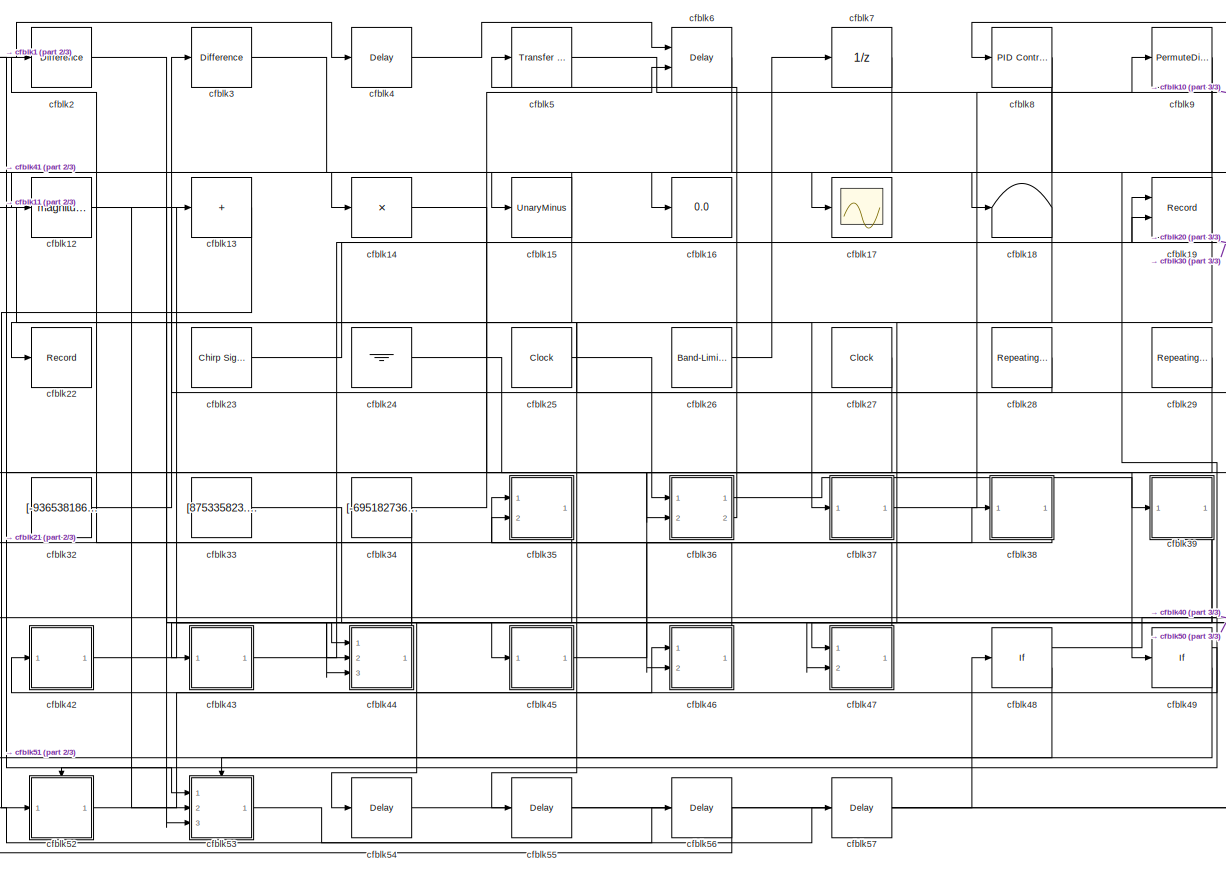
[diagram: root canvas - part 1/3, most of the canvas]
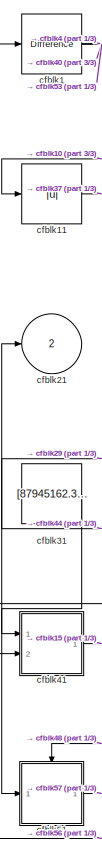
[diagram: root canvas - part 2/3, left side, full height]
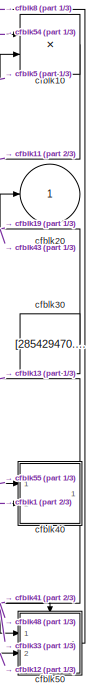
[diagram: root canvas - part 3/3, right side, full height]
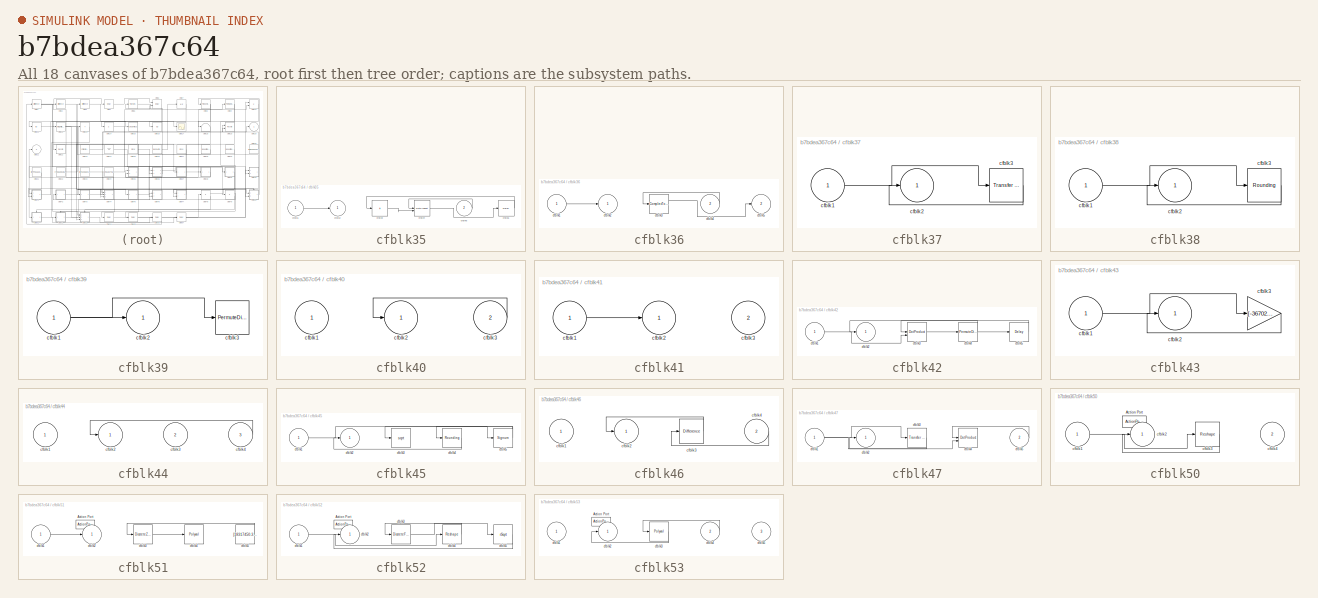
[diagram: thumbnail index - all 18 canvases of the model, root first then tree order]
MODEL slx_b7bdea367c64
KIND model
CONFIG AbsTol = auto
CONFIG EnableMultiTasking = off
CONFIG FixedStep = auto
CONFIG MaxStep = auto
CONFIG MinStep = auto
CONFIG RelTol = 1e-3
CONFIG SampleTimeConstraint = Unconstrained
CONFIG SolverName = VariableStepAuto
CONFIG StartTime = 0.0
CONFIG StopTime = 10.0
BLOCK [Reference] cfblk1  REF=simulink/Discrete/Difference
  Ports = [1, 1]
  SourceBlock = simulink/Discrete/Difference
  SourceProductBaseCode = SL
  SourceType = Difference
BLOCK [Product] cfblk10
  Ports = [2, 1]
BLOCK [Abs] cfblk11
  SaturateOnIntegerOverflow = off
BLOCK [Math] cfblk12
  Operator = magnitude^2
  Ports = [1, 1]
BLOCK [Sum] cfblk13
  IconShape = rectangular
  Inputs = +
  Ports = [1, 1]
BLOCK [Product] cfblk14
  Inputs = *
  Ports = [1, 1]
BLOCK [UnaryMinus] cfblk15
BLOCK [Display] cfblk16
  Decimation = 1
  Ports = [1]
BLOCK [Scope] cfblk17
  Floating = off
  NumInputPorts = 1
  Ports = [1]
BLOCK [Terminator] cfblk18
BLOCK [Record] cfblk19
  CompatibilityTag = XY
  FileSettingsInternal = {"entries":[{"content":{"excelSettings":{"content":{},"type":"Streamout.ExcelSettings"}},"type":"Streamout.FileSettingStorage","uuid":"751e4d99-45f8-40d9-b9e3-6c58bf4239d2"}],"packageUris":["http://schema.mathworks.com/mf0/streamout_blocks/R2020a"],"version":"1.0"}
  Layout = [1 1]
  Ports = [2]
  SignalsInternal = {"entries":[{"content":{"signals":[{"content":{"blockPath":["sampleModel189/cfblk19"],"channel":[],"dimensions":[1],"domain":"sampleModel189/cfblk19","lineColor":"#a2142f","plots":[1],"port":1,"sid":[""],"signalID":7095,"signalName":"cfblk30"},"type":"RecordBlkView.Signal","uuid":"2f15c82b-8551-407f-94ab-65c4b1ae4010"},{"content":{"blockPath":["sampleModel189/cfblk19"],"channel":[],"dimensions":[1...<+383ch>
  VisualizationBindings = {"xyplotplugin":{"info":[{"series":[{"bindingParametersList":[{"parameter":"X-Axis","signalID":7095,"signalName":"cfblk30"},{"parameter":"Y-Axis","signalID":7099,"signalName":"cfblk23"}],"seriesID":10630}],"subplotID":1}]}}
BLOCK [Reference] cfblk2  REF=simulink/Discrete/Difference
  Ports = [1, 1]
  SourceBlock = simulink/Discrete/Difference
  SourceProductBaseCode = SL
  SourceType = Difference
BLOCK [Outport] cfblk20
BLOCK [Outport] cfblk21
  Port = 2
BLOCK [Record] cfblk22
  FileSettingsInternal = {"entries":[{"content":{"excelSettings":{"content":{},"type":"Streamout.ExcelSettings"}},"type":"Streamout.FileSettingStorage","uuid":"a7b27562-a01f-4c86-8193-aa076a536ee6"}],"packageUris":["http://schema.mathworks.com/mf0/streamout_blocks/R2020a"],"version":"1.0"}
  Ports = [1]
  SignalsInternal = {"entries":[{"content":{"signals":[{"content":{"blockPath":["sampleModel189/cfblk22"],"channel":[],"dimensions":[1],"domain":"sampleModel189/cfblk22","lineColor":"#0072bd","plots":[1],"port":1,"sid":[""],"signalID":7103,"signalName":"cfblk28"},"type":"RecordBlkView.Signal","uuid":"4461f903-eca4-4961-b801-cb7c5602d0fa"}]},"type":"RecordBlkView.InputSignals","uuid":"5c4d19d6-a334-4d05-b301-3a9efca48...<+97ch>
  VisualizationBindings = {"sparklinesplugin":{"info":[{"bindingParametersList":[],"subplotID":1}]}}
BLOCK [Reference] cfblk23  REF=simulink/Sources/Chirp Signal
  Ports = [0, 1]
  SourceBlock = simulink/Sources/Chirp Signal
  SourceProductBaseCode = SL
  SourceType = chirp
BLOCK [Ground] cfblk24
BLOCK [Clock] cfblk25
BLOCK [Reference] cfblk26  REF=simulink/Sources/Band-Limited
White Noise
  Ports = [0, 1]
  SourceBlock = simulink/Sources/Band-Limited\nWhite Noise
  SourceProductBaseCode = SL
  SourceType = Band-Limited White Noise.
BLOCK [Clock] cfblk27
BLOCK [Reference] cfblk28  REF=simulink/Sources/Repeating
Sequence
Interpolated
  Ports = [0, 1]
  SourceBlock = simulink/Sources/Repeating\nSequence\nInterpolated
  SourceProductBaseCode = SL
  SourceType = Repeating Sequence Interpolated
BLOCK [Reference] cfblk29  REF=simulink/Sources/Repeating
Sequence
Stair
  Ports = [0, 1]
  SourceBlock = simulink/Sources/Repeating\nSequence\nStair
  SourceProductBaseCode = SL
  SourceType = Repeating Sequence Stair
BLOCK [Reference] cfblk3  REF=simulink/Discrete/Difference
  Ports = [1, 1]
  SourceBlock = simulink/Discrete/Difference
  SourceProductBaseCode = SL
  SourceType = Difference
BLOCK [Constant] cfblk30
  SampleTime = 1
  Value = [285429470.929445]
BLOCK [Constant] cfblk31
  SampleTime = 1
  Value = [87945162.384821]
BLOCK [Constant] cfblk32
  SampleTime = 1
  Value = [-936538186.247113]
BLOCK [Constant] cfblk33
  SampleTime = 1
  Value = [875335823.969465]
BLOCK [Constant] cfblk34
  SampleTime = 1
  Value = [-695182736.408448]
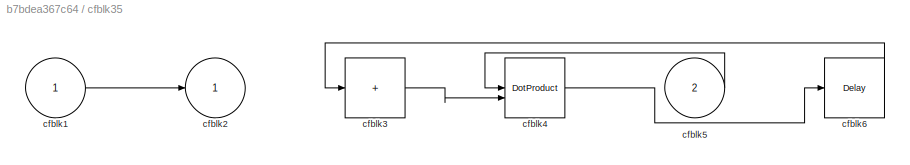
BLOCK [SubSystem] cfblk35
  Ports = [2, 1]
  RequestExecContextInheritance = off
BLOCK [Inport] cfblk35/cfblk1
BLOCK [Outport] cfblk35/cfblk2
BLOCK [Sum] cfblk35/cfblk3
  IconShape = rectangular
  Inputs = +
  Ports = [1, 1]
BLOCK [DotProduct] cfblk35/cfblk4
  OutDataTypeStr = Inherit: Inherit via internal rule
BLOCK [Inport] cfblk35/cfblk5
  Port = 2
BLOCK [Delay] cfblk35/cfblk6
  InputPortMap = u0
  Ports = [1, 1]
  SampleTime = 1
BLOCK [SubSystem] cfblk36
  Ports = [2, 2]
  RequestExecContextInheritance = off
BLOCK [Inport] cfblk36/cfblk1
BLOCK [Outport] cfblk36/cfblk2
BLOCK [ComplexToRealImag] cfblk36/cfblk3
  Ports = [1, 2]
BLOCK [Inport] cfblk36/cfblk4
  Port = 2
BLOCK [Outport] cfblk36/cfblk5
  Port = 2
BLOCK [SubSystem] cfblk37
  Ports = [1, 1]
  RequestExecContextInheritance = off
BLOCK [Inport] cfblk37/cfblk1
BLOCK [Outport] cfblk37/cfblk2
BLOCK [Reference] cfblk37/cfblk3  REF=simulink/Discrete/Transfer Fcn
Real Zero
  Ports = [1, 1]
  SourceBlock = simulink/Discrete/Transfer Fcn\nReal Zero
  SourceProductBaseCode = SL
  SourceType = Transfer Fcn Real Zero
BLOCK [SubSystem] cfblk38
  Ports = [1, 1]
  RequestExecContextInheritance = off
BLOCK [Inport] cfblk38/cfblk1
BLOCK [Outport] cfblk38/cfblk2
BLOCK [Rounding] cfblk38/cfblk3
BLOCK [SubSystem] cfblk39
  Ports = [1, 1]
  RequestExecContextInheritance = off
BLOCK [Inport] cfblk39/cfblk1
BLOCK [Outport] cfblk39/cfblk2
BLOCK [PermuteDimensions] cfblk39/cfblk3
BLOCK [Delay] cfblk4
  InputPortMap = u0
  Ports = [1, 1]
  SampleTime = 1
BLOCK [SubSystem] cfblk40
  Ports = [2, 1]
  RequestExecContextInheritance = off
BLOCK [Inport] cfblk40/cfblk1
BLOCK [Outport] cfblk40/cfblk2
BLOCK [Inport] cfblk40/cfblk3
  Port = 2
BLOCK [SubSystem] cfblk41
  Ports = [2, 1]
  RequestExecContextInheritance = off
BLOCK [Inport] cfblk41/cfblk1
BLOCK [Outport] cfblk41/cfblk2
BLOCK [Inport] cfblk41/cfblk3
  Port = 2
BLOCK [SubSystem] cfblk42
  Ports = [1, 1]
  RequestExecContextInheritance = off
BLOCK [Inport] cfblk42/cfblk1
BLOCK [Outport] cfblk42/cfblk2
BLOCK [DotProduct] cfblk42/cfblk3
  OutDataTypeStr = Inherit: Inherit via internal rule
BLOCK [PermuteDimensions] cfblk42/cfblk4
BLOCK [Delay] cfblk42/cfblk5
  InputPortMap = u0
  Ports = [1, 1]
  SampleTime = 1
BLOCK [SubSystem] cfblk43
  Ports = [1, 1]
  RequestExecContextInheritance = off
BLOCK [Inport] cfblk43/cfblk1
BLOCK [Outport] cfblk43/cfblk2
BLOCK [Gain] cfblk43/cfblk3
  Gain = [-367020434.376307]
BLOCK [SubSystem] cfblk44
  Ports = [3, 1]
  RequestExecContextInheritance = off
BLOCK [Inport] cfblk44/cfblk1
BLOCK [Outport] cfblk44/cfblk2
BLOCK [Inport] cfblk44/cfblk3
  Port = 2
BLOCK [Inport] cfblk44/cfblk4
  Port = 3
BLOCK [SubSystem] cfblk45
  Ports = [1, 1]
  RequestExecContextInheritance = off
BLOCK [Inport] cfblk45/cfblk1
BLOCK [Outport] cfblk45/cfblk2
BLOCK [Sqrt] cfblk45/cfblk3
BLOCK [Rounding] cfblk45/cfblk4
BLOCK [Signum] cfblk45/cfblk5
BLOCK [SubSystem] cfblk46
  Ports = [2, 1]
  RequestExecContextInheritance = off
BLOCK [Inport] cfblk46/cfblk1
BLOCK [Outport] cfblk46/cfblk2
BLOCK [Reference] cfblk46/cfblk3  REF=simulink/Discrete/Difference
  Ports = [1, 1]
  SourceBlock = simulink/Discrete/Difference
  SourceProductBaseCode = SL
  SourceType = Difference
BLOCK [Inport] cfblk46/cfblk4
  Port = 2
BLOCK [SubSystem] cfblk47
  Ports = [2, 1]
  RequestExecContextInheritance = off
BLOCK [Inport] cfblk47/cfblk1
BLOCK [Outport] cfblk47/cfblk2
BLOCK [Reference] cfblk47/cfblk3  REF=simulink/Discrete/Transfer Fcn
First Order
  Ports = [1, 1]
  SourceBlock = simulink/Discrete/Transfer Fcn\nFirst Order
  SourceProductBaseCode = SL
  SourceType = First Order Transfer Fcn
BLOCK [DotProduct] cfblk47/cfblk4
  OutDataTypeStr = Inherit: Inherit via internal rule
BLOCK [Inport] cfblk47/cfblk5
  Port = 2
BLOCK [If] cfblk48
  IfExpression = u1 >= 0
  Ports = [1, 2]
  SampleTime = 1
BLOCK [If] cfblk49
  IfExpression = u1 >= 0
  Ports = [1, 2]
  SampleTime = 1
BLOCK [Reference] cfblk5  REF=simulink/Discrete/Transfer Fcn
Lead or Lag
  Ports = [1, 1]
  SourceBlock = simulink/Discrete/Transfer Fcn\nLead or Lag
  SourceProductBaseCode = SL
  SourceType = Lead or Lag Compensator
BLOCK [SubSystem] cfblk50
  Ports = [2, 1, 0, 0, 0, 0, 0, 1]
  RequestExecContextInheritance = off
  TreatAsAtomicUnit = on
BLOCK [ActionPort] cfblk50/Action Port
  ActionPortLabel = if(u1 >= 0)
BLOCK [Inport] cfblk50/cfblk1
BLOCK [Outport] cfblk50/cfblk2
BLOCK [Reshape] cfblk50/cfblk3
  Ports = [1, 1]
BLOCK [Inport] cfblk50/cfblk4
  Port = 2
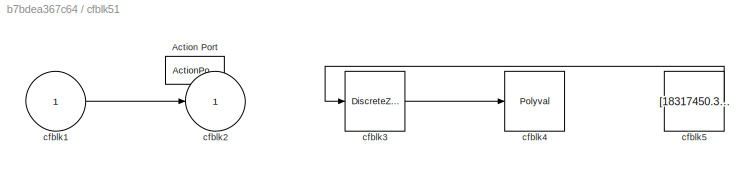
BLOCK [SubSystem] cfblk51
  Ports = [1, 1, 0, 0, 0, 0, 0, 1]
  RequestExecContextInheritance = off
  TreatAsAtomicUnit = on
BLOCK [ActionPort] cfblk51/Action Port
  ActionPortLabel = else
BLOCK [Inport] cfblk51/cfblk1
BLOCK [Outport] cfblk51/cfblk2
BLOCK [DiscreteZeroPole] cfblk51/cfblk3
  Gain = 1
  Poles = [0 0.5]
  SampleTime = -1
BLOCK [Polyval] cfblk51/cfblk4
  Coefs = [ +2.081618890e-019, -1.441693666e-014, +4.719686976e-010, -8.536869453e-006, +1.621573104e-001, -8.087801117e+001 ]
BLOCK [Constant] cfblk51/cfblk5
  SampleTime = 1
  Value = [18317450.341616]
BLOCK [SubSystem] cfblk52
  Ports = [1, 1, 0, 0, 0, 0, 0, 1]
  RequestExecContextInheritance = off
  TreatAsAtomicUnit = on
BLOCK [ActionPort] cfblk52/Action Port
  ActionPortLabel = if(u1 >= 0)
BLOCK [Inport] cfblk52/cfblk1
BLOCK [Outport] cfblk52/cfblk2
BLOCK [DiscreteFilter] cfblk52/cfblk3
  InputPortMap = u0
  Ports = [1, 1]
BLOCK [Reshape] cfblk52/cfblk4
  Ports = [1, 1]
BLOCK [Sqrt] cfblk52/cfblk5
  AlgorithmType = Newton-Raphson
  Operator = rSqrt
BLOCK [SubSystem] cfblk53
  Ports = [3, 1, 0, 0, 0, 0, 0, 1]
  RequestExecContextInheritance = off
  TreatAsAtomicUnit = on
BLOCK [ActionPort] cfblk53/Action Port
  ActionPortLabel = else
BLOCK [Inport] cfblk53/cfblk1
BLOCK [Outport] cfblk53/cfblk2
BLOCK [Polyval] cfblk53/cfblk3
  Coefs = [ +2.081618890e-019, -1.441693666e-014, +4.719686976e-010, -8.536869453e-006, +1.621573104e-001, -8.087801117e+001 ]
BLOCK [Inport] cfblk53/cfblk4
  Port = 2
BLOCK [Inport] cfblk53/cfblk5
  Port = 3
BLOCK [Delay] cfblk54
  InputPortMap = u0
  Ports = [1, 1]
  SampleTime = 1
BLOCK [Delay] cfblk55
  InputPortMap = u0
  Ports = [1, 1]
  SampleTime = 1
BLOCK [Delay] cfblk56
  InputPortMap = u0
  Ports = [1, 1]
  SampleTime = 1
BLOCK [Delay] cfblk57
  InputPortMap = u0
  Ports = [1, 1]
  SampleTime = 1
BLOCK [Delay] cfblk6
  InputPortMap = u0,e6
  Ports = [2, 1]
  SampleTime = 1
  ShowEnablePort = on
BLOCK [UnitDelay] cfblk7
  HasFrameUpgradeWarning = on
BLOCK [Reference] cfblk8  REF=slpidlib/PID Controller
  Ports = [1, 1]
  SourceBlock = slpidlib/PID Controller
  SourceProductBaseCode = SL
  SourceType = PID 1dof
BLOCK [PermuteDimensions] cfblk9
LINE cfblk10:1 -> cfblk11:1
LINE cfblk11:1 -> cfblk37:1
NET cfblk12:1 -> cfblk44:1, cfblk50:2, cfblk53:2
LINE cfblk13:1 -> cfblk52:1
LINE cfblk14:1 -> cfblk36:2
NET cfblk15:1 -> cfblk12:1, cfblk53:3
NET cfblk1:1 -> cfblk40:2, cfblk4:1, cfblk53:1
LINE cfblk23:1 -> cfblk19:2
LINE cfblk24:1 -> cfblk49:1
LINE cfblk25:1 -> cfblk36:1
LINE cfblk26:1 -> cfblk7:1
LINE cfblk27:1 -> cfblk46:2
LINE cfblk28:1 -> cfblk22:1
LINE cfblk29:1 -> cfblk41:1
LINE cfblk2:1 -> cfblk44:2
LINE cfblk30:1 -> cfblk19:1
LINE cfblk31:1 -> cfblk51:1
LINE cfblk32:1 -> cfblk3:1
LINE cfblk33:1 -> cfblk50:1
NET cfblk34:1 -> cfblk43:1, cfblk6:2
LINE cfblk35/cfblk1:1 -> cfblk35/cfblk2:1
LINE cfblk35/cfblk3:1 -> cfblk35/cfblk4:2
LINE cfblk35/cfblk4:1 -> cfblk35/cfblk6:1
LINE cfblk35/cfblk5:1 -> cfblk35/cfblk4:1
LINE cfblk35/cfblk6:1 -> cfblk35/cfblk3:1
LINE cfblk35:1 -> cfblk54:1
LINE cfblk36/cfblk1:1 -> cfblk36/cfblk2:1
LINE cfblk36/cfblk3:1 -> cfblk36/cfblk5:1
LINE cfblk36/cfblk4:1 -> cfblk36/cfblk3:1
LINE cfblk36:1 -> cfblk39:1
LINE cfblk36:2 -> cfblk5:1
LINE cfblk37/cfblk1:1 -> cfblk37/cfblk3:1
LINE cfblk37/cfblk3:1 -> cfblk37/cfblk2:1
LINE cfblk37:1 -> cfblk9:1
LINE cfblk38/cfblk1:1 -> cfblk38/cfblk3:1
LINE cfblk38/cfblk3:1 -> cfblk38/cfblk2:1
LINE cfblk38:1 -> cfblk35:2
NET cfblk39/cfblk1:1 -> cfblk39/cfblk2:1, cfblk39/cfblk3:1
NET cfblk39:1 -> cfblk44:3, cfblk47:2
LINE cfblk3:1 -> cfblk17:1
LINE cfblk40/cfblk3:1 -> cfblk40/cfblk2:1
NET cfblk40:1 -> cfblk13:1, cfblk41:2
LINE cfblk41/cfblk1:1 -> cfblk41/cfblk2:1
LINE cfblk41:1 -> cfblk15:1
LINE cfblk42/cfblk1:1 -> cfblk42/cfblk3:2
LINE cfblk42/cfblk3:1 -> cfblk42/cfblk4:1
NET cfblk42/cfblk4:1 -> cfblk42/cfblk2:1, cfblk42/cfblk5:1
LINE cfblk42/cfblk5:1 -> cfblk42/cfblk3:1
LINE cfblk42:1 -> cfblk45:1
LINE cfblk43/cfblk1:1 -> cfblk43/cfblk3:1
LINE cfblk43/cfblk3:1 -> cfblk43/cfblk2:1
LINE cfblk43:1 -> cfblk20:1
LINE cfblk44/cfblk4:1 -> cfblk44/cfblk2:1
LINE cfblk44:1 -> cfblk21:1
LINE cfblk45/cfblk1:1 -> cfblk45/cfblk5:1
LINE cfblk45/cfblk4:1 -> cfblk45/cfblk2:1
NET cfblk45/cfblk5:1 -> cfblk45/cfblk3:1, cfblk45/cfblk4:1
LINE cfblk45:1 -> cfblk38:1
LINE cfblk46/cfblk3:1 -> cfblk46/cfblk2:1
LINE cfblk46/cfblk4:1 -> cfblk46/cfblk3:1
LINE cfblk46:1 -> cfblk35:1
NET cfblk47/cfblk1:1 -> cfblk47/cfblk3:1, cfblk47/cfblk4:2
LINE cfblk47/cfblk3:1 -> cfblk47/cfblk2:1
LINE cfblk47/cfblk5:1 -> cfblk47/cfblk4:1
LINE cfblk47:1 -> cfblk2:1
LINE cfblk48:1 -> cfblk50:ifaction
LINE cfblk48:2 -> cfblk51:ifaction
LINE cfblk49:1 -> cfblk52:ifaction
LINE cfblk49:2 -> cfblk53:ifaction
LINE cfblk4:1 -> cfblk6:1
LINE cfblk50/cfblk1:1 -> cfblk50/cfblk3:1
LINE cfblk50/cfblk3:1 -> cfblk50/cfblk2:1
LINE cfblk50:1 -> cfblk8:1
LINE cfblk51/cfblk1:1 -> cfblk51/cfblk2:1
LINE cfblk51/cfblk3:1 -> cfblk51/cfblk4:1
LINE cfblk51/cfblk5:1 -> cfblk51/cfblk3:1
LINE cfblk51:1 -> cfblk57:1
LINE cfblk52/cfblk1:1 -> cfblk52/cfblk4:1
LINE cfblk52/cfblk3:1 -> cfblk52/cfblk5:1
LINE cfblk52/cfblk4:1 -> cfblk52/cfblk3:1
LINE cfblk52/cfblk5:1 -> cfblk52/cfblk2:1
LINE cfblk52:1 -> cfblk46:1
LINE cfblk53/cfblk3:1 -> cfblk53/cfblk2:1
LINE cfblk53/cfblk4:1 -> cfblk53/cfblk3:1
LINE cfblk53:1 -> cfblk56:1
LINE cfblk54:1 -> cfblk10:1
LINE cfblk55:1 -> cfblk40:1
LINE cfblk56:1 -> cfblk1:1
LINE cfblk57:1 -> cfblk48:1
LINE cfblk5:1 -> cfblk10:2
LINE cfblk6:1 -> cfblk14:1
LINE cfblk7:1 -> cfblk16:1
NET cfblk8:1 -> cfblk18:1, cfblk55:1
NET cfblk9:1 -> cfblk42:1, cfblk47:1
note: NET lines group one-source signal fan-out (src -> all destinations, sorted); 1:1 wires keep LINE
